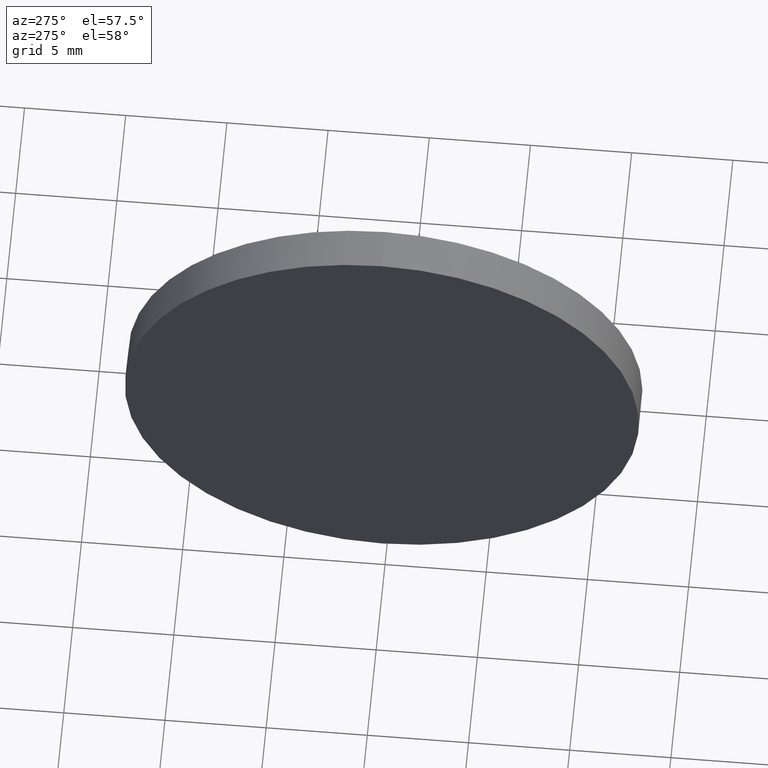
[diagram: clean part render]
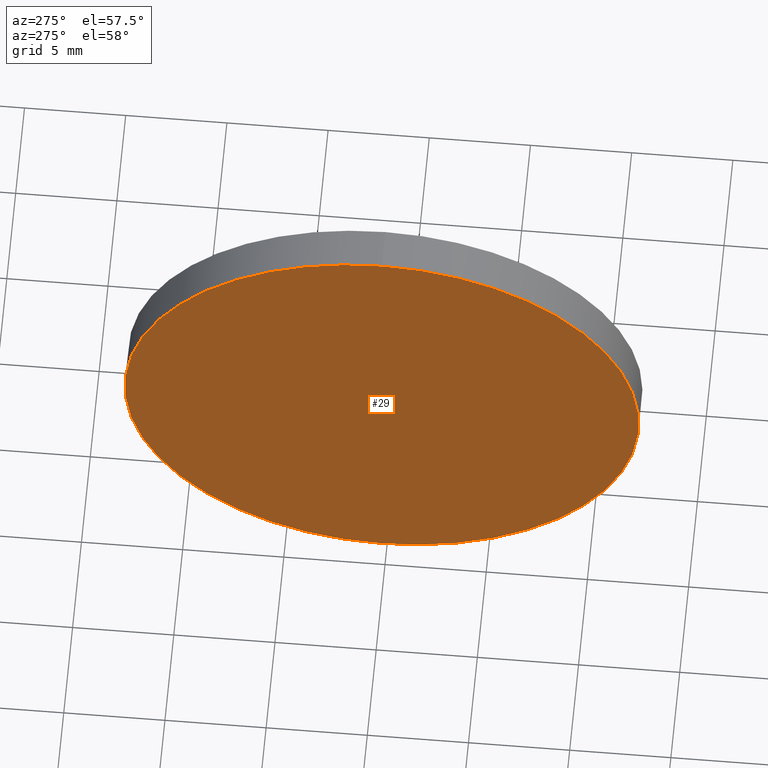
[diagram: same view with one face highlighted and labeled with its STEP entity id]
A machine part, auxiliary view. The second image highlights one B-rep face of the part: STEP entity #29.
In plain terms, the highlighted planar face has unit normal (1, 0, 0).
Its self-contained STEP definition (entity closure, byte-faithful):
#4 = PLANE ( 'NONE',  #8 ) ;
#6 = ORIENTED_EDGE ( 'NONE', *, *, #144, .T. ) ;
#8 = AXIS2_PLACEMENT_3D ( 'NONE', #38, #93, #20 ) ;
#11 = DIRECTION ( 'NONE',  ( 0.0000000000000000000, 0.0000000000000000000, 1.000000000000000000 ) ) ;
#15 = FACE_OUTER_BOUND ( 'NONE', #145, .T. ) ;
#19 = CARTESIAN_POINT ( 'NONE',  ( 115.8700467759432500, 65.23355492641219700, -12.70000000000000300 ) ) ;
#20 = DIRECTION ( 'NONE',  ( 0.0000000000000000000, 0.0000000000000000000, -1.000000000000000000 ) ) ;
#23 = DIRECTION ( 'NONE',  ( -1.000000000000000000, -0.0000000000000000000, -0.0000000000000000000 ) ) ;
#29 = ADVANCED_FACE ( 'NONE', ( #15 ), #4, .F. ) ;
#36 = AXIS2_PLACEMENT_3D ( 'NONE', #124, #23, #11 ) ;
#38 = CARTESIAN_POINT ( 'NONE',  ( 115.8700467759432500, 65.23355492641219700, 0.0000000000000000000 ) ) ;
#50 = VERTEX_POINT ( 'NONE', #19 ) ;
#52 = CARTESIAN_POINT ( 'NONE',  ( 115.8700467759432500, 65.23355492641219700, 12.70000000000000300 ) ) ;
#53 = CARTESIAN_POINT ( 'NONE',  ( 115.8700467759432500, 65.23355492641219700, 0.0000000000000000000 ) ) ;
#93 = DIRECTION ( 'NONE',  ( 1.000000000000000000, 0.0000000000000000000, 0.0000000000000000000 ) ) ;
#119 = AXIS2_PLACEMENT_3D ( 'NONE', #53, #128, #141 ) ;
#120 = CIRCLE ( 'NONE', #36, 12.70000000000000300 ) ;
#124 = CARTESIAN_POINT ( 'NONE',  ( 115.8700467759432500, 65.23355492641219700, 0.0000000000000000000 ) ) ;
#125 = EDGE_CURVE ( 'NONE', #50, #143, #120, .T. ) ;
#128 = DIRECTION ( 'NONE',  ( -1.000000000000000000, -0.0000000000000000000, -0.0000000000000000000 ) ) ;
#138 = CIRCLE ( 'NONE', #119, 12.70000000000000300 ) ;
#141 = DIRECTION ( 'NONE',  ( 0.0000000000000000000, 0.0000000000000000000, 1.000000000000000000 ) ) ;
#143 = VERTEX_POINT ( 'NONE', #52 ) ;
#144 = EDGE_CURVE ( 'NONE', #143, #50, #138, .T. ) ;
#145 = EDGE_LOOP ( 'NONE', ( #6, #155 ) ) ;
#155 = ORIENTED_EDGE ( 'NONE', *, *, #125, .T. ) ;